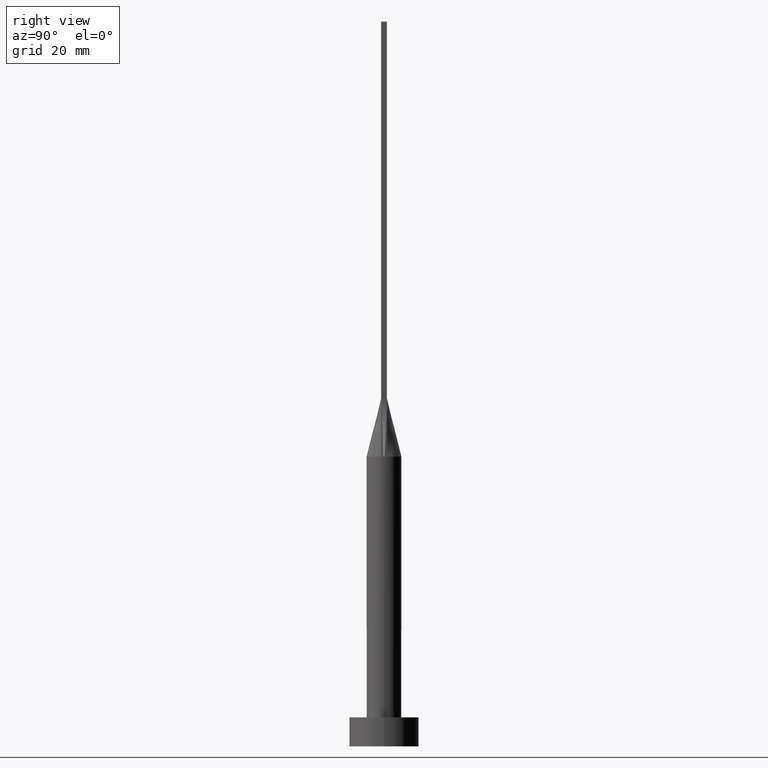
[diagram: clean part render]
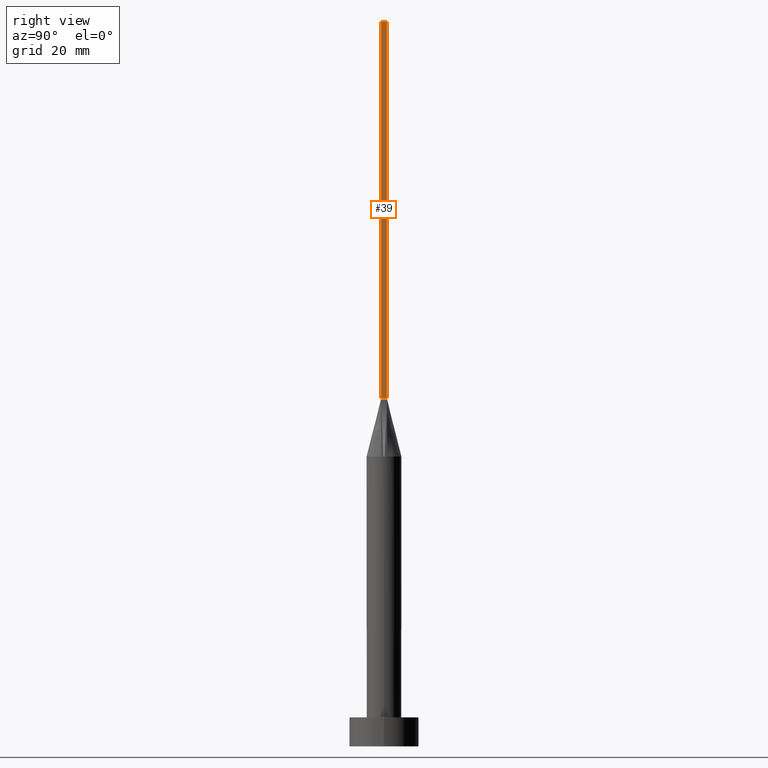
[diagram: same view with one face highlighted and labeled with its STEP entity id]
A machine part, right view. The second image highlights one B-rep face of the part: STEP entity #39.
In plain terms, the highlighted planar face has unit normal (-1, 0, 0).
Its self-contained STEP definition (entity closure, byte-faithful):
#15 = DIRECTION ( 'NONE',  ( 0.000000000000000000, 1.000000000000000000, 0.000000000000000000 ) ) ;
#25 = LINE ( 'NONE', #207, #32 ) ;
#32 = VECTOR ( 'NONE', #15, 1000.000000000000000 ) ;
#39 = ADVANCED_FACE ( 'NONE', ( #324 ), #242, .F. ) ;
#45 = ORIENTED_EDGE ( 'NONE', *, *, #59, .T. ) ;
#46 = CARTESIAN_POINT ( 'NONE',  ( 2.750000000000000000, -0.4999999999999997780, 125.0000000000000000 ) ) ;
#59 = EDGE_CURVE ( 'NONE', #551, #136, #464, .T. ) ;
#66 = LINE ( 'NONE', #187, #130 ) ;
#76 = VERTEX_POINT ( 'NONE', #236 ) ;
#78 = VECTOR ( 'NONE', #273, 1000.000000000000000 ) ;
#82 = EDGE_CURVE ( 'NONE', #136, #76, #66, .T. ) ;
#90 = ORIENTED_EDGE ( 'NONE', *, *, #323, .F. ) ;
#102 = CARTESIAN_POINT ( 'NONE',  ( 2.750000000000000000, -0.4999999999999997780, 125.0000000000000000 ) ) ;
#104 = DIRECTION ( 'NONE',  ( 0.000000000000000000, 0.000000000000000000, 1.000000000000000000 ) ) ;
#110 = DIRECTION ( 'NONE',  ( -0.000000000000000000, -0.000000000000000000, -1.000000000000000000 ) ) ;
#120 = AXIS2_PLACEMENT_3D ( 'NONE', #102, #416, #104 ) ;
#130 = VECTOR ( 'NONE', #562, 1000.000000000000000 ) ;
#134 = ORIENTED_EDGE ( 'NONE', *, *, #362, .F. ) ;
#136 = VERTEX_POINT ( 'NONE', #433 ) ;
#162 = VERTEX_POINT ( 'NONE', #283 ) ;
#187 = CARTESIAN_POINT ( 'NONE',  ( 2.750000000000000000, 0.5000000000000002220, 60.00000000000000000 ) ) ;
#199 = CARTESIAN_POINT ( 'NONE',  ( 2.750000000000000000, -0.4999999999999997780, 125.0000000000000000 ) ) ;
#207 = CARTESIAN_POINT ( 'NONE',  ( 2.750000000000000000, -0.4999999999999997780, 125.0000000000000000 ) ) ;
#236 = CARTESIAN_POINT ( 'NONE',  ( 2.750000000000000000, 0.5000000000000002220, 60.00000000000000000 ) ) ;
#242 = PLANE ( 'NONE',  #120 ) ;
#265 = ORIENTED_EDGE ( 'NONE', *, *, #82, .T. ) ;
#273 = DIRECTION ( 'NONE',  ( -0.000000000000000000, -0.000000000000000000, -1.000000000000000000 ) ) ;
#283 = CARTESIAN_POINT ( 'NONE',  ( 2.750000000000000000, 0.5000000000000002220, 125.0000000000000000 ) ) ;
#306 = EDGE_LOOP ( 'NONE', ( #265, #90, #134, #45 ) ) ;
#323 = EDGE_CURVE ( 'NONE', #162, #76, #563, .T. ) ;
#324 = FACE_OUTER_BOUND ( 'NONE', #306, .T. ) ;
#362 = EDGE_CURVE ( 'NONE', #551, #162, #25, .T. ) ;
#416 = DIRECTION ( 'NONE',  ( -1.000000000000000000, 0.000000000000000000, 0.000000000000000000 ) ) ;
#425 = CARTESIAN_POINT ( 'NONE',  ( 2.750000000000000000, 0.5000000000000002220, 125.0000000000000000 ) ) ;
#433 = CARTESIAN_POINT ( 'NONE',  ( 2.750000000000000000, -0.4999999999999997780, 60.00000000000000000 ) ) ;
#463 = VECTOR ( 'NONE', #110, 1000.000000000000000 ) ;
#464 = LINE ( 'NONE', #199, #78 ) ;
#551 = VERTEX_POINT ( 'NONE', #46 ) ;
#562 = DIRECTION ( 'NONE',  ( -0.000000000000000000, 1.000000000000000000, -0.000000000000000000 ) ) ;
#563 = LINE ( 'NONE', #425, #463 ) ;